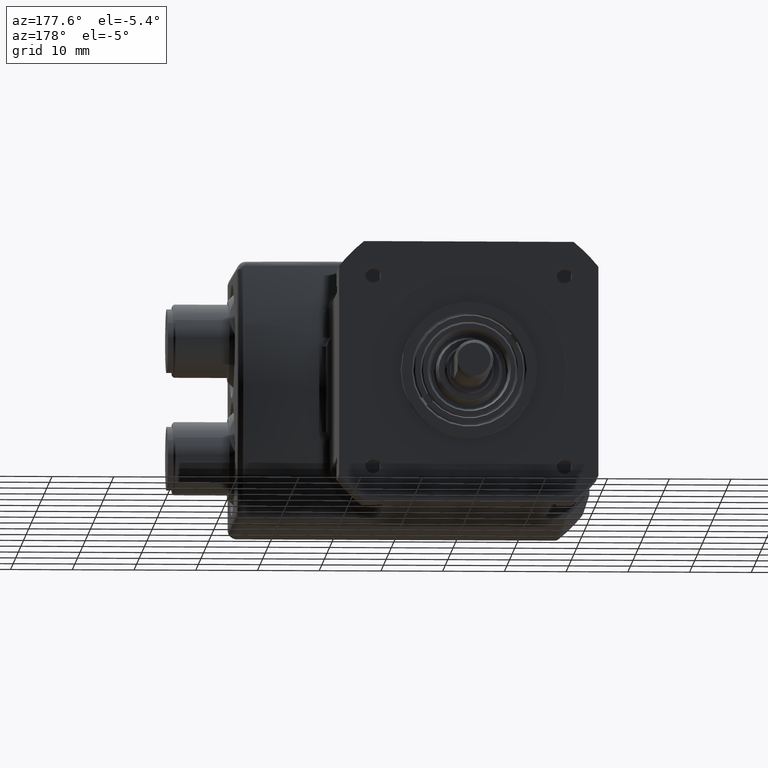
[diagram: clean part render]
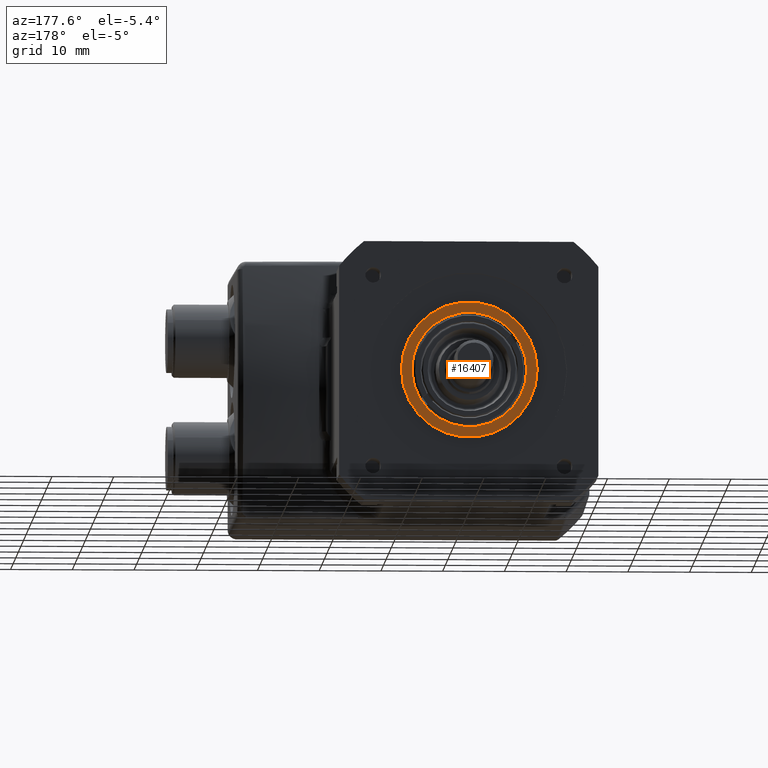
[diagram: same view with one face highlighted and labeled with its STEP entity id]
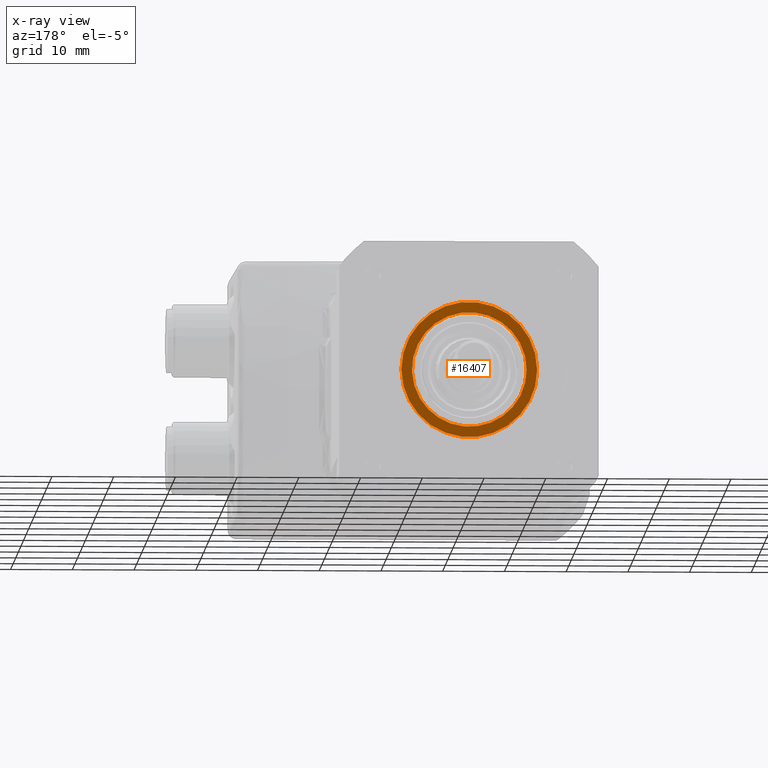
[diagram: x-ray of the same camera — body ghosted, the highlighted face saturated]
A machine part, auxiliary view. The second image highlights one B-rep face of the part: STEP entity #16407.
The next image is the same camera in x-ray: the body ghosted, the highlighted face saturated — about 0% of this face is hidden behind the body in this view.
In plain terms, the highlighted planar face has unit normal (0, -1, 0).
Its self-contained STEP definition (entity closure, byte-faithful):
#149 = FACE_BOUND ( 'NONE', #16178, .T. ) ;
#415 = DIRECTION ( 'NONE',  ( 0.000000000000000000, -1.000000000000000000, 0.000000000000000000 ) ) ;
#771 = DIRECTION ( 'NONE',  ( 1.000000000000000000, 0.000000000000000000, -2.220446049250315053E-16 ) ) ;
#781 = DIRECTION ( 'NONE',  ( 0.000000000000000000, -1.000000000000000000, 0.000000000000000000 ) ) ;
#1227 = EDGE_LOOP ( 'NONE', ( #12851 ) ) ;
#2456 = CIRCLE ( 'NONE', #12219, 11.00000000000011191 ) ;
#2835 = VERTEX_POINT ( 'NONE', #15080 ) ;
#2970 = ORIENTED_EDGE ( 'NONE', *, *, #4609, .T. ) ;
#3030 = DIRECTION ( 'NONE',  ( -1.000000000000000000, 0.000000000000000000, 2.220446049250312588E-16 ) ) ;
#4609 = EDGE_CURVE ( 'NONE', #12442, #12442, #10887, .T. ) ;
#4778 = CARTESIAN_POINT ( 'NONE',  ( -1.110223024625156540E-12, 33.00000000000000711, -1.110223024625156540E-12 ) ) ;
#4788 = CARTESIAN_POINT ( 'NONE',  ( -1.110223024625156540E-12, 33.00000000000000711, -1.110223024625156540E-12 ) ) ;
#7068 = EDGE_CURVE ( 'NONE', #2835, #2835, #2456, .T. ) ;
#7254 = AXIS2_PLACEMENT_3D ( 'NONE', #15013, #415, #3030 ) ;
#9661 = PLANE ( 'NONE',  #7254 ) ;
#10704 = CARTESIAN_POINT ( 'NONE',  ( -9.300000000001150013, 33.00000000000000711, -1.108158009799353911E-12 ) ) ;
#10887 = CIRCLE ( 'NONE', #13965, 9.300000000000039790 ) ;
#11404 = DIRECTION ( 'NONE',  ( -1.000000000000000000, 0.000000000000000000, 2.220446049250218171E-16 ) ) ;
#12219 = AXIS2_PLACEMENT_3D ( 'NONE', #4778, #13968, #771 ) ;
#12442 = VERTEX_POINT ( 'NONE', #10704 ) ;
#12851 = ORIENTED_EDGE ( 'NONE', *, *, #7068, .T. ) ;
#13965 = AXIS2_PLACEMENT_3D ( 'NONE', #4788, #781, #11404 ) ;
#13968 = DIRECTION ( 'NONE',  ( -0.000000000000000000, 1.000000000000000000, 0.000000000000000000 ) ) ;
#15013 = CARTESIAN_POINT ( 'NONE',  ( -1.110223024625156540E-12, 33.00000000000000711, 46.34142135619934066 ) ) ;
#15080 = CARTESIAN_POINT ( 'NONE',  ( 10.99999999999900169, 33.00000000000000711, -1.112665515279331885E-12 ) ) ;
#16066 = FACE_OUTER_BOUND ( 'NONE', #1227, .T. ) ;
#16178 = EDGE_LOOP ( 'NONE', ( #2970 ) ) ;
#16407 = ADVANCED_FACE ( 'NONE', ( #149, #16066 ), #9661, .F. ) ;